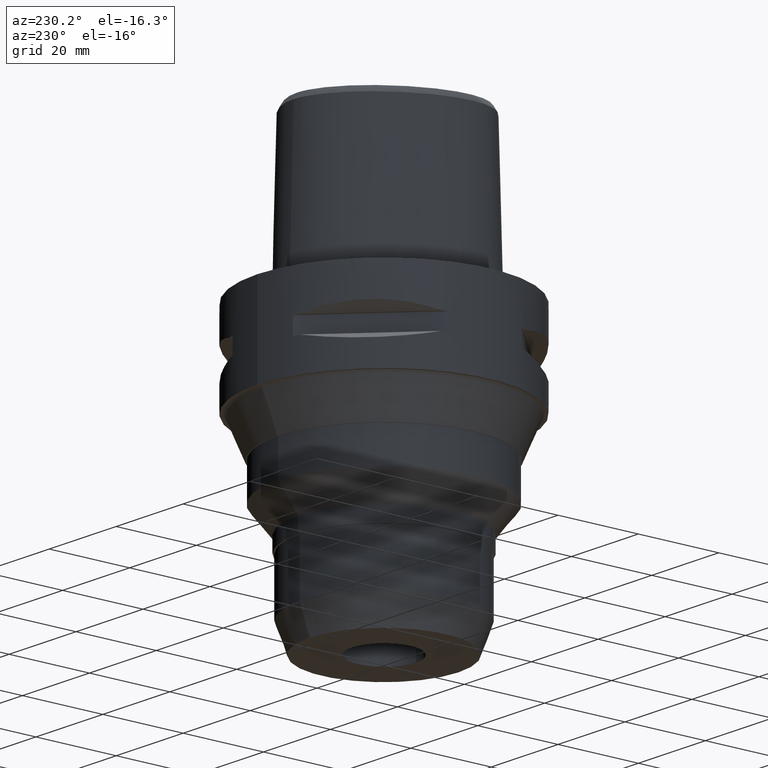
[diagram: clean part render]
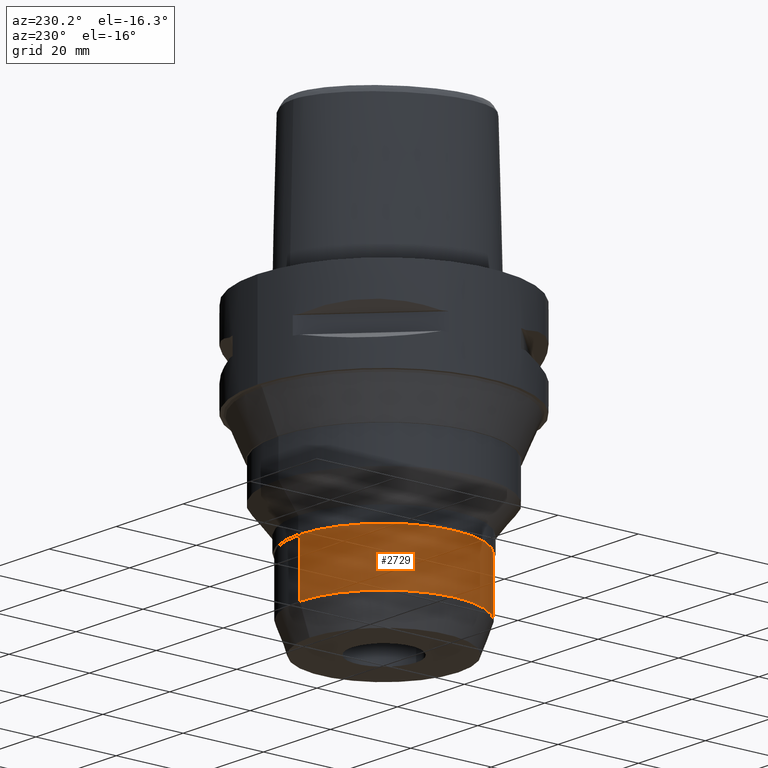
[diagram: same view with one face highlighted and labeled with its STEP entity id]
A machine part, auxiliary view. The second image highlights one B-rep face of the part: STEP entity #2729.
In plain terms, the highlighted cylindrical surface (partial cylindrical patch) has radius 21 mm, axis along (0, 0, -1).
Its self-contained STEP definition (entity closure, byte-faithful):
#713=CARTESIAN_POINT('',(0.E0,1.267509437118E-14,-4.99E1));
#714=DIRECTION('',(0.E0,0.E0,-1.E0));
#715=DIRECTION('',(0.E0,-1.E0,0.E0));
#716=AXIS2_PLACEMENT_3D('',#713,#714,#715);
#729=DIRECTION('',(0.E0,1.621426468445E-13,-1.E0));
#730=VECTOR('',#729,1.33E1);
#731=CARTESIAN_POINT('',(0.E0,-2.1E1,-4.99E1));
#732=LINE('',#731,#730);
#736=DIRECTION('',(0.E0,-1.624097681737E-13,-1.E0));
#737=VECTOR('',#736,1.33E1);
#738=CARTESIAN_POINT('',(0.E0,2.1E1,-4.99E1));
#739=LINE('',#738,#737);
#758=CARTESIAN_POINT('',(0.E0,0.E0,-6.32E1));
#759=DIRECTION('',(0.E0,0.E0,1.E0));
#760=DIRECTION('',(0.E0,1.E0,0.E0));
#761=AXIS2_PLACEMENT_3D('',#758,#759,#760);
#1672=CARTESIAN_POINT('',(0.E0,-2.1E1,-4.99E1));
#1673=CARTESIAN_POINT('',(0.E0,2.1E1,-4.99E1));
#1674=VERTEX_POINT('',#1672);
#1675=VERTEX_POINT('',#1673);
#1676=CARTESIAN_POINT('',(0.E0,2.1E1,-6.32E1));
#1677=VERTEX_POINT('',#1676);
#1678=CARTESIAN_POINT('',(0.E0,-2.1E1,-6.32E1));
#1679=VERTEX_POINT('',#1678);
#2715=CARTESIAN_POINT('',(0.E0,1.267509437118E-14,3.5E0));
#2716=DIRECTION('',(0.E0,0.E0,-1.E0));
#2717=DIRECTION('',(0.E0,-1.E0,0.E0));
#2718=AXIS2_PLACEMENT_3D('',#2715,#2716,#2717);
#2719=CYLINDRICAL_SURFACE('',#2718,2.1E1);
#2721=ORIENTED_EDGE('',*,*,#2720,.F.);
#2722=ORIENTED_EDGE('',*,*,#2708,.F.);
#2724=ORIENTED_EDGE('',*,*,#2723,.T.);
#2726=ORIENTED_EDGE('',*,*,#2725,.F.);
#2727=EDGE_LOOP('',(#2721,#2722,#2724,#2726));
#2728=FACE_OUTER_BOUND('',#2727,.F.);
#717=CIRCLE('',#716,2.1E1);
#762=CIRCLE('',#761,2.1E1);
#2708=EDGE_CURVE('',#1674,#1675,#717,.T.);
#2720=EDGE_CURVE('',#1675,#1677,#739,.T.);
#2723=EDGE_CURVE('',#1674,#1679,#732,.T.);
#2725=EDGE_CURVE('',#1677,#1679,#762,.T.);
#2729=ADVANCED_FACE('',(#2728),#2719,.T.);